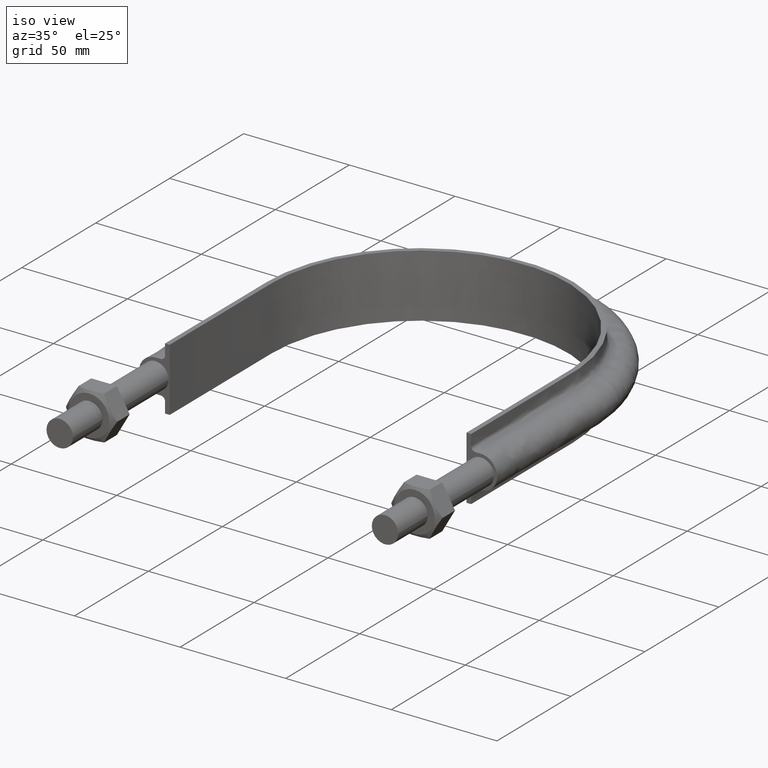
[diagram: clean part render]
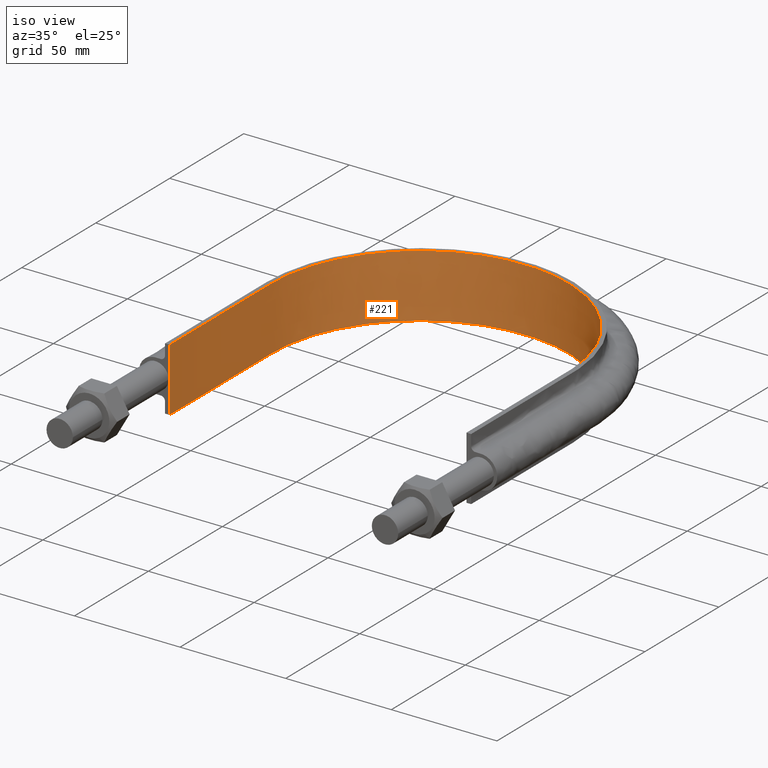
[diagram: same view with one face highlighted and labeled with its STEP entity id]
A machine part, iso view. The second image highlights one B-rep face of the part: STEP entity #221.
In plain terms, the highlighted face is a SurfaceOfExtrusion surface.
Its self-contained STEP definition (entity closure, byte-faithful):
#221 = ADVANCED_FACE( '', ( #264 ), #265, .T. );
#264 = FACE_OUTER_BOUND( '', #535, .T. );
#265 = SURFACE_OF_LINEAR_EXTRUSION( '', #536, #537 );
#535 = EDGE_LOOP( '', ( #1306, #1307, #1308, #1309 ) );
#536 = B_SPLINE_CURVE_WITH_KNOTS( '', 3, ( #1310, #1311, #1312, #1313, #1314, #1315, #1316, #1317, #1318, #1319, #1320, #1321, #1322, #1323, #1324, #1325 ), .UNSPECIFIED., .F., .F., ( 4, 3, 1, 1, 1, 1, 1, 1, 3, 4 ), ( -9.00000000000000, -8.00000000000000, -7.00000000000000, -6.00000000000000, -5.00000000000000, -4.00000000000000, -3.00000000000000, -2.00000000000000, -1.00000000000000, 0.000000000000000 ), .UNSPECIFIED. );
#537 = VECTOR( '', #1326, 1000.00000000000 );
#1306 = ORIENTED_EDGE( '', *, *, #1553, .F. );
#1307 = ORIENTED_EDGE( '', *, *, #1547, .F. );
#1308 = ORIENTED_EDGE( '', *, *, #1554, .T. );
#1309 = ORIENTED_EDGE( '', *, *, #1555, .T. );
#1310 = CARTESIAN_POINT( '', ( -70.2500000000000, 64.7100000000000, -237.081057040700 ) );
#1311 = CARTESIAN_POINT( '', ( -70.2500000000000, 87.7266666666667, -237.081057040700 ) );
#1312 = CARTESIAN_POINT( '', ( -70.2500000000000, 110.743333333333, -237.081057040700 ) );
#1313 = CARTESIAN_POINT( '', ( -70.2500000000000, 133.760000000000, -237.081057040700 ) );
#1314 = CARTESIAN_POINT( '', ( -70.2500000000000, 144.249418134732, -237.081057040700 ) );
#1315 = CARTESIAN_POINT( '', ( -65.4537147955432, 165.288971927909, -237.081057040700 ) );
#1316 = CARTESIAN_POINT( '', ( -45.2953760364684, 190.556467088273, -237.081057040700 ) );
#1317 = CARTESIAN_POINT( '', ( -16.1657325420394, 204.587129579273, -237.081057040700 ) );
#1318 = CARTESIAN_POINT( '', ( 16.1657325420395, 204.587129579273, -237.081057040700 ) );
#1319 = CARTESIAN_POINT( '', ( 45.2953760364684, 190.556467088273, -237.081057040700 ) );
#1320 = CARTESIAN_POINT( '', ( 65.4537147955432, 165.288971927909, -237.081057040700 ) );
#1321 = CARTESIAN_POINT( '', ( 70.2500000000000, 144.249418134732, -237.081057040700 ) );
#1322 = CARTESIAN_POINT( '', ( 70.2500000000000, 133.760000000000, -237.081057040700 ) );
#1323 = CARTESIAN_POINT( '', ( 70.2500000000000, 110.743333333333, -237.081057040700 ) );
#1324 = CARTESIAN_POINT( '', ( 70.2500000000000, 87.7266666666667, -237.081057040700 ) );
#1325 = CARTESIAN_POINT( '', ( 70.2500000000000, 64.7100000000000, -237.081057040700 ) );
#1326 = DIRECTION( '', ( 0.000000000000000, 0.000000000000000, 1.00000000000000 ) );
#1547 = EDGE_CURVE( '', #1613, #1614, #1615, .T. );
#1553 = EDGE_CURVE( '', #1614, #1625, #1626, .T. );
#1554 = EDGE_CURVE( '', #1613, #1627, #1628, .T. );
#1555 = EDGE_CURVE( '', #1627, #1625, #1629, .T. );
#1613 = VERTEX_POINT( '', #1729 );
#1614 = VERTEX_POINT( '', #1730 );
#1615 = LINE( '', #1731, #1732 );
#1625 = VERTEX_POINT( '', #1794 );
#1626 = B_SPLINE_CURVE_WITH_KNOTS( '', 3, ( #1795, #1796, #1797, #1798, #1799, #1800, #1801, #1802, #1803, #1804, #1805, #1806, #1807, #1808, #1809, #1810 ), .UNSPECIFIED., .F., .F., ( 4, 3, 1, 1, 1, 1, 1, 1, 3, 4 ), ( -9.00000000000000, -8.00000000000000, -7.00000000000000, -6.00000000000000, -5.00000000000000, -4.00000000000000, -3.00000000000000, -2.00000000000000, -1.00000000000000, 0.000000000000000 ), .UNSPECIFIED. );
#1627 = VERTEX_POINT( '', #1811 );
#1628 = B_SPLINE_CURVE_WITH_KNOTS( '', 3, ( #1812, #1813, #1814, #1815, #1816, #1817, #1818, #1819, #1820, #1821, #1822, #1823, #1824, #1825, #1826, #1827 ), .UNSPECIFIED., .F., .F., ( 4, 3, 1, 1, 1, 1, 1, 1, 3, 4 ), ( -9.00000000000000, -8.00000000000000, -7.00000000000000, -6.00000000000000, -5.00000000000000, -4.00000000000000, -3.00000000000000, -2.00000000000000, -1.00000000000000, 0.000000000000000 ), .UNSPECIFIED. );
#1629 = LINE( '', #1828, #1829 );
#1729 = CARTESIAN_POINT( '', ( -70.2500000000000, 64.7100000000000, -15.0000000000000 ) );
#1730 = CARTESIAN_POINT( '', ( -70.2500000000000, 64.7100000000000, 15.0000000000000 ) );
#1731 = CARTESIAN_POINT( '', ( -70.2500000000000, 64.7100000000000, -237.081057040700 ) );
#1732 = VECTOR( '', #2167, 1000.00000000000 );
#1794 = CARTESIAN_POINT( '', ( 70.2500000000000, 64.7100000000000, 15.0000000000000 ) );
#1795 = CARTESIAN_POINT( '', ( -70.2500000000000, 64.7100000000000, 15.0000000000000 ) );
#1796 = CARTESIAN_POINT( '', ( -70.2500000000000, 87.7266666666667, 15.0000000000000 ) );
#1797 = CARTESIAN_POINT( '', ( -70.2500000000000, 110.743333333333, 15.0000000000000 ) );
#1798 = CARTESIAN_POINT( '', ( -70.2500000000000, 133.760000000000, 15.0000000000000 ) );
#1799 = CARTESIAN_POINT( '', ( -70.2500000000000, 144.249418134732, 15.0000000000000 ) );
#1800 = CARTESIAN_POINT( '', ( -65.4537147955432, 165.288971927909, 15.0000000000000 ) );
#1801 = CARTESIAN_POINT( '', ( -45.2953760364684, 190.556467088273, 15.0000000000000 ) );
#1802 = CARTESIAN_POINT( '', ( -16.1657325420394, 204.587129579273, 15.0000000000000 ) );
#1803 = CARTESIAN_POINT( '', ( 16.1657325420395, 204.587129579273, 15.0000000000000 ) );
#1804 = CARTESIAN_POINT( '', ( 45.2953760364684, 190.556467088273, 15.0000000000000 ) );
#1805 = CARTESIAN_POINT( '', ( 65.4537147955432, 165.288971927909, 15.0000000000000 ) );
#1806 = CARTESIAN_POINT( '', ( 70.2500000000000, 144.249418134732, 15.0000000000000 ) );
#1807 = CARTESIAN_POINT( '', ( 70.2500000000000, 133.760000000000, 15.0000000000000 ) );
#1808 = CARTESIAN_POINT( '', ( 70.2500000000000, 110.743333333333, 15.0000000000000 ) );
#1809 = CARTESIAN_POINT( '', ( 70.2500000000000, 87.7266666666667, 15.0000000000000 ) );
#1810 = CARTESIAN_POINT( '', ( 70.2500000000000, 64.7100000000000, 15.0000000000000 ) );
#1811 = CARTESIAN_POINT( '', ( 70.2500000000000, 64.7100000000000, -15.0000000000000 ) );
#1812 = CARTESIAN_POINT( '', ( -70.2500000000000, 64.7100000000000, -15.0000000000000 ) );
#1813 = CARTESIAN_POINT( '', ( -70.2500000000000, 87.7266666666667, -15.0000000000000 ) );
#1814 = CARTESIAN_POINT( '', ( -70.2500000000000, 110.743333333333, -15.0000000000000 ) );
#1815 = CARTESIAN_POINT( '', ( -70.2500000000000, 133.760000000000, -15.0000000000000 ) );
#1816 = CARTESIAN_POINT( '', ( -70.2500000000000, 144.249418134732, -15.0000000000000 ) );
#1817 = CARTESIAN_POINT( '', ( -65.4537147955432, 165.288971927909, -15.0000000000000 ) );
#1818 = CARTESIAN_POINT( '', ( -45.2953760364684, 190.556467088273, -15.0000000000000 ) );
#1819 = CARTESIAN_POINT( '', ( -16.1657325420394, 204.587129579273, -15.0000000000000 ) );
#1820 = CARTESIAN_POINT( '', ( 16.1657325420395, 204.587129579273, -15.0000000000000 ) );
#1821 = CARTESIAN_POINT( '', ( 45.2953760364684, 190.556467088273, -15.0000000000000 ) );
#1822 = CARTESIAN_POINT( '', ( 65.4537147955432, 165.288971927909, -15.0000000000000 ) );
#1823 = CARTESIAN_POINT( '', ( 70.2500000000000, 144.249418134732, -15.0000000000000 ) );
#1824 = CARTESIAN_POINT( '', ( 70.2500000000000, 133.760000000000, -15.0000000000000 ) );
#1825 = CARTESIAN_POINT( '', ( 70.2500000000000, 110.743333333333, -15.0000000000000 ) );
#1826 = CARTESIAN_POINT( '', ( 70.2500000000000, 87.7266666666667, -15.0000000000000 ) );
#1827 = CARTESIAN_POINT( '', ( 70.2500000000000, 64.7100000000000, -15.0000000000000 ) );
#1828 = CARTESIAN_POINT( '', ( 70.2500000000000, 64.7100000000000, -237.081057040700 ) );
#1829 = VECTOR( '', #2170, 1000.00000000000 );
#2167 = DIRECTION( '', ( 0.000000000000000, 0.000000000000000, 1.00000000000000 ) );
#2170 = DIRECTION( '', ( 0.000000000000000, 0.000000000000000, 1.00000000000000 ) );